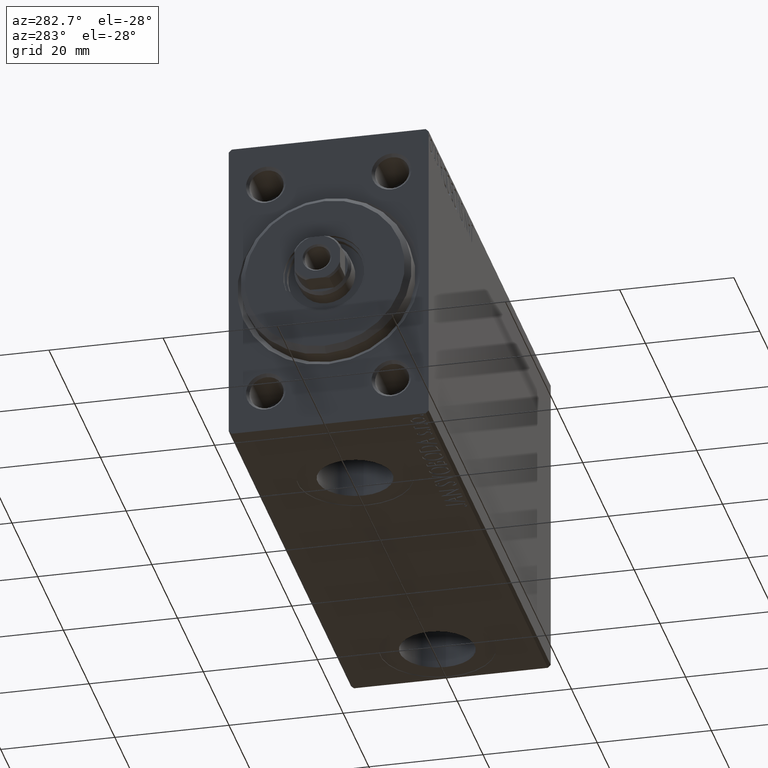
[diagram: clean part render]
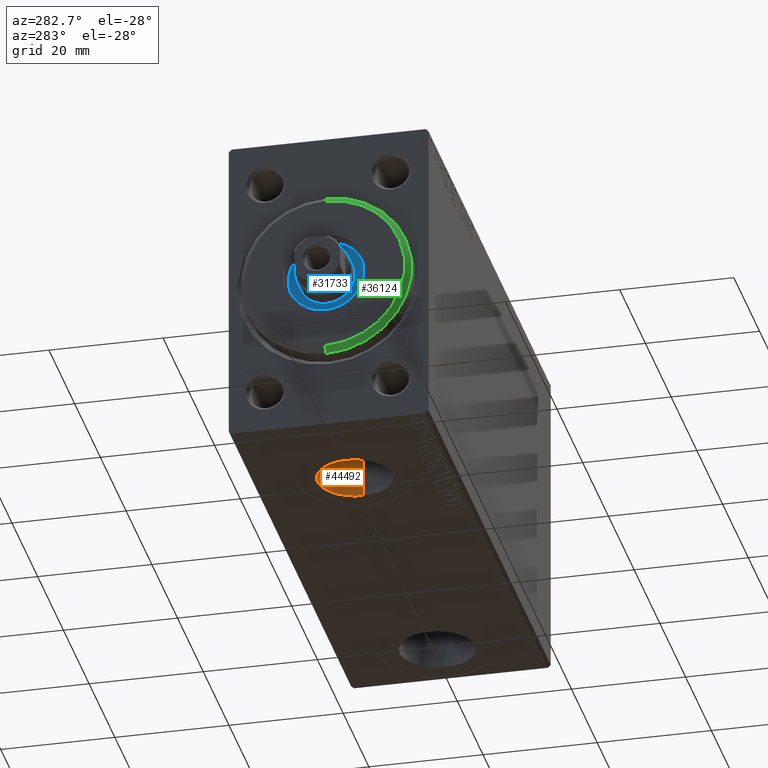
[diagram: same view with three faces highlighted in distinct colors, each labeled with its STEP entity id]
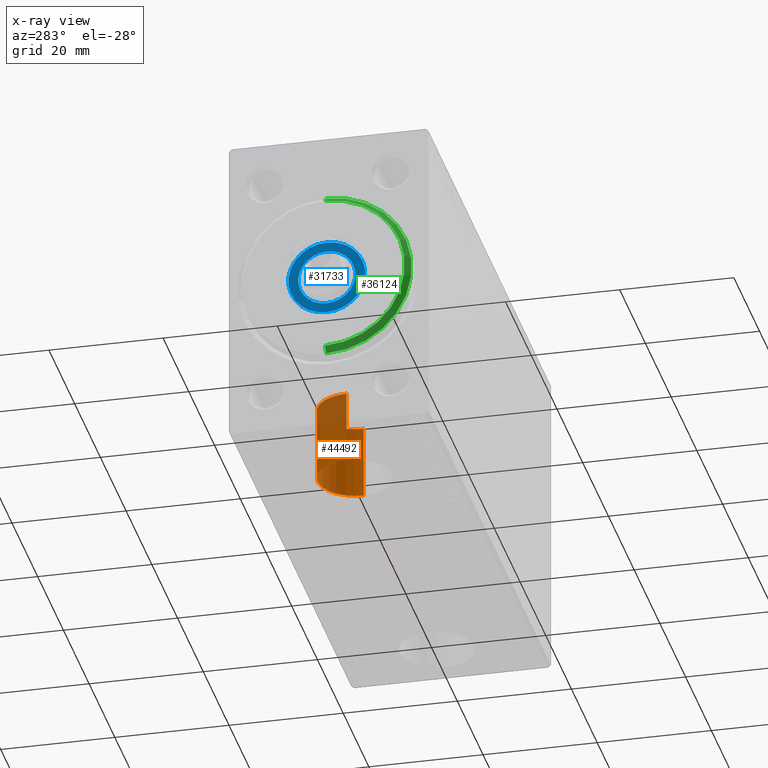
[diagram: x-ray of the same camera — body ghosted, the three highlighted faces saturated]
A machine part, auxiliary view with three faces highlighted in distinct colors.
The next image is the same camera in x-ray (body ghosted, the three faces saturated) — at least one of them is partly hidden behind the body in this view.
Their STEP definitions:

[orange] entity #44492 — the highlighted cylindrical surface (partial cylindrical patch) has radius 6.58 mm, axis along (-0, -0, -1).
#621 = CARTESIAN_POINT ( 'NONE',  ( 13.92000000000000171, -2.726986211408916281E-15, -27.40000000000000924 ) ) ;
#2136 = FACE_OUTER_BOUND ( 'NONE', #42139, .T. ) ;
#2233 = CARTESIAN_POINT ( 'NONE',  ( 13.92000000000000171, -2.726986211408916281E-15, -14.50000000000000711 ) ) ;
#3674 = VERTEX_POINT ( 'NONE', #2233 ) ;
#4337 = CARTESIAN_POINT ( 'NONE',  ( 13.92000000000000171, -2.726986211408916281E-15, -14.50000000000000711 ) ) ;
#8281 = EDGE_CURVE ( 'NONE', #33280, #14257, #29215, .T. ) ;
#8363 = AXIS2_PLACEMENT_3D ( 'NONE', #18709, #29755, #43782 ) ;
#8950 = AXIS2_PLACEMENT_3D ( 'NONE', #36406, #18906, #12229 ) ;
#10386 = CARTESIAN_POINT ( 'NONE',  ( 27.08000000000000540, -1.921168617569958028E-15, -27.40000000000000924 ) ) ;
#10993 = LINE ( 'NONE', #4337, #36123 ) ;
#11240 = EDGE_CURVE ( 'NONE', #3674, #33280, #28797, .T. ) ;
#11910 = DIRECTION ( 'NONE',  ( -1.000000000000000000, 0.000000000000000000, 0.000000000000000000 ) ) ;
#12229 = DIRECTION ( 'NONE',  ( -1.000000000000000000, 0.000000000000000000, 0.000000000000000000 ) ) ;
#14230 = AXIS2_PLACEMENT_3D ( 'NONE', #32399, #28956, #11910 ) ;
#14257 = VERTEX_POINT ( 'NONE', #10386 ) ;
#17863 = ORIENTED_EDGE ( 'NONE', *, *, #34262, .T. ) ;
#18709 = CARTESIAN_POINT ( 'NONE',  ( 20.50000000000000355, -2.726986211408916281E-15, -14.50000000000000711 ) ) ;
#18906 = DIRECTION ( 'NONE',  ( 0.000000000000000000, 0.000000000000000000, -1.000000000000000000 ) ) ;
#19070 = CARTESIAN_POINT ( 'NONE',  ( 27.08000000000000540, -1.921168617569958028E-15, -14.50000000000000711 ) ) ;
#19164 = VECTOR ( 'NONE', #43691, 1000.000000000000000 ) ;
#21995 = ORIENTED_EDGE ( 'NONE', *, *, #8281, .F. ) ;
#25034 = DIRECTION ( 'NONE',  ( -0.000000000000000000, -0.000000000000000000, -1.000000000000000000 ) ) ;
#28689 = ORIENTED_EDGE ( 'NONE', *, *, #44129, .T. ) ;
#28797 = CIRCLE ( 'NONE', #8950, 6.580000000000002736 ) ;
#28956 = DIRECTION ( 'NONE',  ( 0.000000000000000000, 0.000000000000000000, -1.000000000000000000 ) ) ;
#29215 = LINE ( 'NONE', #19070, #19164 ) ;
#29755 = DIRECTION ( 'NONE',  ( -0.000000000000000000, -0.000000000000000000, -1.000000000000000000 ) ) ;
#30211 = CYLINDRICAL_SURFACE ( 'NONE', #8363, 6.580000000000002736 ) ;
#32399 = CARTESIAN_POINT ( 'NONE',  ( 20.50000000000000355, -2.726986211408916281E-15, -27.40000000000000924 ) ) ;
#32602 = CIRCLE ( 'NONE', #14230, 6.580000000000002736 ) ;
#33280 = VERTEX_POINT ( 'NONE', #37715 ) ;
#34262 = EDGE_CURVE ( 'NONE', #3674, #40794, #10993, .T. ) ;
#36123 = VECTOR ( 'NONE', #25034, 1000.000000000000000 ) ;
#36406 = CARTESIAN_POINT ( 'NONE',  ( 20.50000000000000355, -2.726986211408916281E-15, -14.50000000000000711 ) ) ;
#37715 = CARTESIAN_POINT ( 'NONE',  ( 27.08000000000000540, -1.921168617569958028E-15, -14.50000000000000711 ) ) ;
#40794 = VERTEX_POINT ( 'NONE', #621 ) ;
#42139 = EDGE_LOOP ( 'NONE', ( #21995, #43966, #17863, #28689 ) ) ;
#43691 = DIRECTION ( 'NONE',  ( -0.000000000000000000, -0.000000000000000000, -1.000000000000000000 ) ) ;
#43782 = DIRECTION ( 'NONE',  ( -1.000000000000000000, 0.000000000000000000, 0.000000000000000000 ) ) ;
#43966 = ORIENTED_EDGE ( 'NONE', *, *, #11240, .F. ) ;
#44129 = EDGE_CURVE ( 'NONE', #40794, #14257, #32602, .T. ) ;
#44492 = ADVANCED_FACE ( 'NONE', ( #2136 ), #30211, .F. ) ;

[blue] entity #31733 — the highlighted planar face has unit normal (-1, 0, 0).
#112 = VERTEX_POINT ( 'NONE', #1182 ) ;
#1182 = CARTESIAN_POINT ( 'NONE',  ( 1.500000000000000000, 8.266365894244632361E-16, -6.750000000000000000 ) ) ;
#1301 = VERTEX_POINT ( 'NONE', #11933 ) ;
#1452 = VERTEX_POINT ( 'NONE', #27350 ) ;
#2083 = AXIS2_PLACEMENT_3D ( 'NONE', #9835, #13956, #14177 ) ;
#5148 = EDGE_CURVE ( 'NONE', #17512, #1301, #24231, .T. ) ;
#5221 = EDGE_CURVE ( 'NONE', #112, #1452, #33789, .T. ) ;
#5239 = ORIENTED_EDGE ( 'NONE', *, *, #5221, .T. ) ;
#6395 = CARTESIAN_POINT ( 'NONE',  ( 1.499999999999999556, 6.123233995736765296E-16, 5.000000000000000000 ) ) ;
#6695 = AXIS2_PLACEMENT_3D ( 'NONE', #15424, #29926, #32920 ) ;
#8331 = CIRCLE ( 'NONE', #42841, 6.750000000000000000 ) ;
#9830 = DIRECTION ( 'NONE',  ( 0.000000000000000000, 0.000000000000000000, -1.000000000000000000 ) ) ;
#9835 = CARTESIAN_POINT ( 'NONE',  ( 1.500000000000000000, 0.000000000000000000, 0.000000000000000000 ) ) ;
#9851 = EDGE_LOOP ( 'NONE', ( #23425, #25308 ) ) ;
#11933 = CARTESIAN_POINT ( 'NONE',  ( 1.499999999999999556, 0.000000000000000000, -5.000000000000000000 ) ) ;
#13946 = AXIS2_PLACEMENT_3D ( 'NONE', #34734, #41409, #23465 ) ;
#13956 = DIRECTION ( 'NONE',  ( 1.000000000000000000, 0.000000000000000000, 0.000000000000000000 ) ) ;
#14060 = EDGE_CURVE ( 'NONE', #1452, #112, #8331, .T. ) ;
#14177 = DIRECTION ( 'NONE',  ( 0.000000000000000000, 0.000000000000000000, -1.000000000000000000 ) ) ;
#15424 = CARTESIAN_POINT ( 'NONE',  ( 1.499999999999999556, 0.000000000000000000, 0.000000000000000000 ) ) ;
#16814 = EDGE_CURVE ( 'NONE', #1301, #17512, #25316, .T. ) ;
#16834 = EDGE_LOOP ( 'NONE', ( #25429, #5239 ) ) ;
#16966 = DIRECTION ( 'NONE',  ( 1.000000000000000000, 0.000000000000000000, 0.000000000000000000 ) ) ;
#17512 = VERTEX_POINT ( 'NONE', #6395 ) ;
#19609 = DIRECTION ( 'NONE',  ( 1.000000000000000000, 0.000000000000000000, 0.000000000000000000 ) ) ;
#23425 = ORIENTED_EDGE ( 'NONE', *, *, #16814, .F. ) ;
#23465 = DIRECTION ( 'NONE',  ( 0.000000000000000000, 0.000000000000000000, -1.000000000000000000 ) ) ;
#24231 = CIRCLE ( 'NONE', #6695, 5.000000000000000000 ) ;
#25308 = ORIENTED_EDGE ( 'NONE', *, *, #5148, .F. ) ;
#25316 = CIRCLE ( 'NONE', #31200, 5.000000000000000000 ) ;
#25429 = ORIENTED_EDGE ( 'NONE', *, *, #14060, .T. ) ;
#27350 = CARTESIAN_POINT ( 'NONE',  ( 1.500000000000000000, 0.000000000000000000, 6.750000000000000000 ) ) ;
#27555 = CARTESIAN_POINT ( 'NONE',  ( 1.499999999999999556, 0.000000000000000000, 0.000000000000000000 ) ) ;
#29926 = DIRECTION ( 'NONE',  ( 1.000000000000000000, 0.000000000000000000, 0.000000000000000000 ) ) ;
#31200 = AXIS2_PLACEMENT_3D ( 'NONE', #27555, #16966, #9830 ) ;
#31733 = ADVANCED_FACE ( 'NONE', ( #41356, #34907 ), #45485, .T. ) ;
#32920 = DIRECTION ( 'NONE',  ( 0.000000000000000000, 0.000000000000000000, -1.000000000000000000 ) ) ;
#33194 = CARTESIAN_POINT ( 'NONE',  ( 1.500000000000000000, 0.000000000000000000, 0.000000000000000000 ) ) ;
#33660 = DIRECTION ( 'NONE',  ( 0.000000000000000000, 0.000000000000000000, -1.000000000000000000 ) ) ;
#33789 = CIRCLE ( 'NONE', #13946, 6.750000000000000000 ) ;
#34734 = CARTESIAN_POINT ( 'NONE',  ( 1.500000000000000000, 0.000000000000000000, 0.000000000000000000 ) ) ;
#34907 = FACE_OUTER_BOUND ( 'NONE', #16834, .T. ) ;
#41356 = FACE_BOUND ( 'NONE', #9851, .T. ) ;
#41409 = DIRECTION ( 'NONE',  ( 1.000000000000000000, 0.000000000000000000, 0.000000000000000000 ) ) ;
#42841 = AXIS2_PLACEMENT_3D ( 'NONE', #33194, #19609, #33660 ) ;
#45485 = PLANE ( 'NONE',  #2083 ) ;

[green] entity #36124 — the highlighted conical surface has half-angle 45 deg.
#678 = DIRECTION ( 'NONE',  ( 0.000000000000000000, 0.000000000000000000, 1.000000000000000000 ) ) ;
#1362 = LINE ( 'NONE', #40010, #13621 ) ;
#4368 = DIRECTION ( 'NONE',  ( -0.7071067811865482389, 8.659560562354926695E-17, -0.7071067811865469066 ) ) ;
#5218 = ORIENTED_EDGE ( 'NONE', *, *, #6635, .F. ) ;
#6078 = CARTESIAN_POINT ( 'NONE',  ( 1.999999999999995781, 0.000000000000000000, 0.000000000000000000 ) ) ;
#6534 = DIRECTION ( 'NONE',  ( 0.000000000000000000, 0.000000000000000000, -1.000000000000000000 ) ) ;
#6635 = EDGE_CURVE ( 'NONE', #11840, #9323, #14729, .T. ) ;
#7355 = EDGE_LOOP ( 'NONE', ( #5218, #15966, #13043, #28862 ) ) ;
#9323 = VERTEX_POINT ( 'NONE', #25256 ) ;
#11840 = VERTEX_POINT ( 'NONE', #35323 ) ;
#13043 = ORIENTED_EDGE ( 'NONE', *, *, #32594, .F. ) ;
#13621 = VECTOR ( 'NONE', #4368, 999.9999999999998863 ) ;
#14030 = DIRECTION ( 'NONE',  ( -1.000000000000000000, 0.000000000000000000, 0.000000000000000000 ) ) ;
#14137 = CONICAL_SURFACE ( 'NONE', #20766, 13.99999999999999645, 0.7853981633974473908 ) ;
#14490 = CARTESIAN_POINT ( 'NONE',  ( 3.000000000000000000, 0.000000000000000000, 0.000000000000000000 ) ) ;
#14536 = LINE ( 'NONE', #24445, #42118 ) ;
#14729 = CIRCLE ( 'NONE', #29455, 13.99999999999999645 ) ;
#15966 = ORIENTED_EDGE ( 'NONE', *, *, #24585, .T. ) ;
#19104 = CIRCLE ( 'NONE', #33790, 15.00000000000000000 ) ;
#19188 = DIRECTION ( 'NONE',  ( -1.000000000000000000, 0.000000000000000000, 0.000000000000000000 ) ) ;
#20766 = AXIS2_PLACEMENT_3D ( 'NONE', #14490, #14030, #678 ) ;
#21073 = CARTESIAN_POINT ( 'NONE',  ( 1.999999999999995781, 0.000000000000000000, 15.00000000000000000 ) ) ;
#21898 = VERTEX_POINT ( 'NONE', #21073 ) ;
#22636 = DIRECTION ( 'NONE',  ( 0.000000000000000000, 0.000000000000000000, -1.000000000000000000 ) ) ;
#24445 = CARTESIAN_POINT ( 'NONE',  ( 3.000000000000000000, 0.000000000000000000, 13.99999999999999645 ) ) ;
#24585 = EDGE_CURVE ( 'NONE', #11840, #26463, #1362, .T. ) ;
#25256 = CARTESIAN_POINT ( 'NONE',  ( 3.000000000000000000, 0.000000000000000000, 13.99999999999999645 ) ) ;
#26463 = VERTEX_POINT ( 'NONE', #26885 ) ;
#26885 = CARTESIAN_POINT ( 'NONE',  ( 1.999999999999995781, 1.836970198721029589E-15, -15.00000000000000000 ) ) ;
#27923 = CARTESIAN_POINT ( 'NONE',  ( 3.000000000000000000, 0.000000000000000000, 0.000000000000000000 ) ) ;
#28862 = ORIENTED_EDGE ( 'NONE', *, *, #39432, .F. ) ;
#29455 = AXIS2_PLACEMENT_3D ( 'NONE', #27923, #45409, #6534 ) ;
#32594 = EDGE_CURVE ( 'NONE', #21898, #26463, #19104, .T. ) ;
#33790 = AXIS2_PLACEMENT_3D ( 'NONE', #6078, #19188, #22636 ) ;
#35028 = DIRECTION ( 'NONE',  ( -0.7071067811865482389, 0.000000000000000000, 0.7071067811865469066 ) ) ;
#35323 = CARTESIAN_POINT ( 'NONE',  ( 3.000000000000000000, 1.775737858763662015E-15, -13.99999999999999645 ) ) ;
#36124 = ADVANCED_FACE ( 'NONE', ( #45565 ), #14137, .T. ) ;
#39432 = EDGE_CURVE ( 'NONE', #9323, #21898, #14536, .T. ) ;
#40010 = CARTESIAN_POINT ( 'NONE',  ( 3.000000000000000000, 1.714505518806294244E-15, -13.99999999999999645 ) ) ;
#42118 = VECTOR ( 'NONE', #35028, 999.9999999999998863 ) ;
#45409 = DIRECTION ( 'NONE',  ( 1.000000000000000000, -0.000000000000000000, 0.000000000000000000 ) ) ;
#45565 = FACE_OUTER_BOUND ( 'NONE', #7355, .T. ) ;